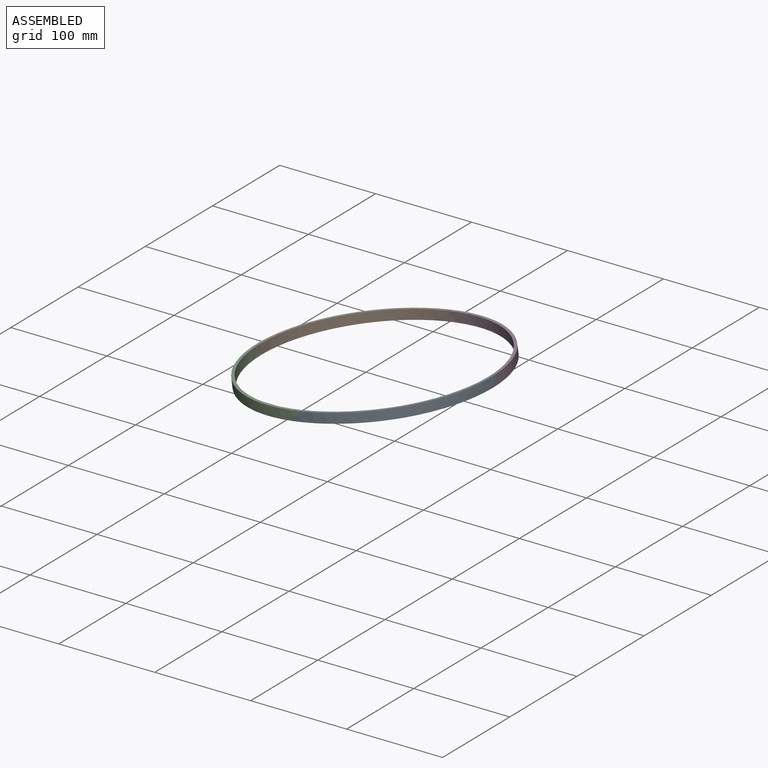
[diagram: assembled view]
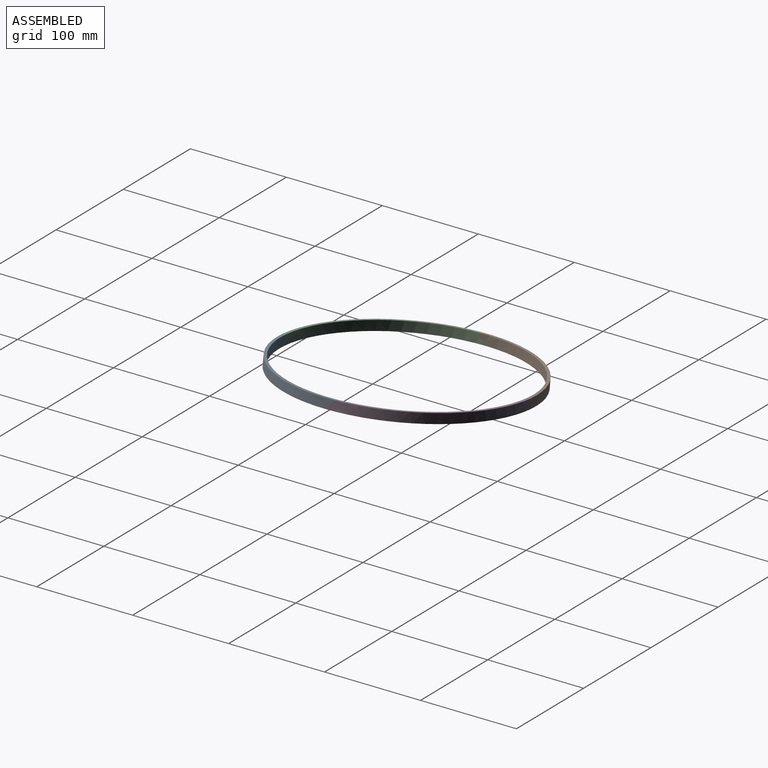
[diagram: assembled view, second angle]
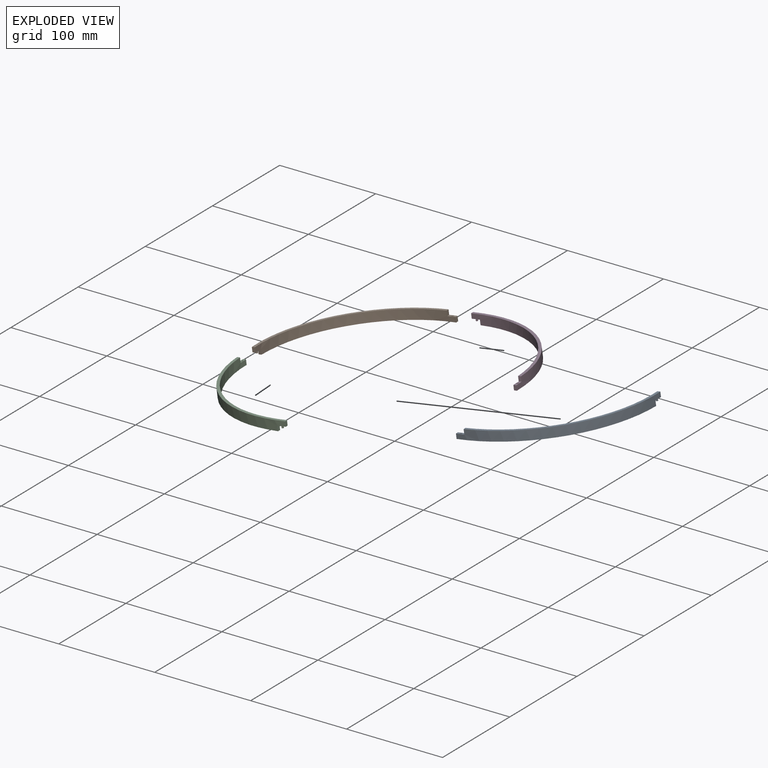
[diagram: exploded view]
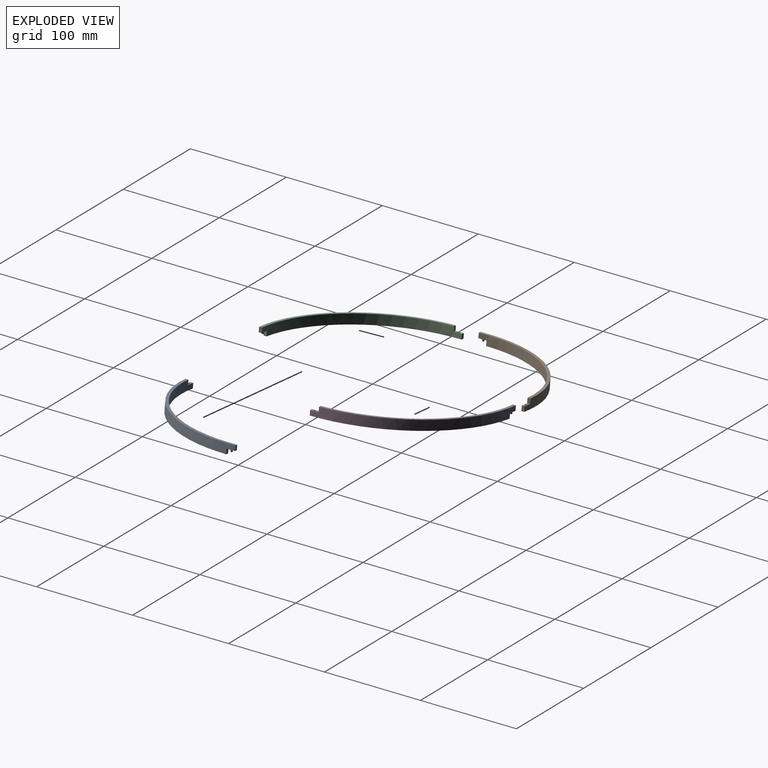
[diagram: exploded view, second angle]
ASSEMBLY  parts=4 mates=3
PART A: 14 faces, bbox 123x131.6x10 mm
  f0: plane 123x123mm, normal (0,0,-1), area 572.6mm2, adj f1,f2,f4,f7
  f1: plane 5x3mm, normal (1,0,0), area 15mm2, adj f0,f2,f4,f10
  f2: cylinder r=123mm len=131.58mm, axis (0,0,-1), area 1932.1mm2, adj f0,f1,f3,f5,f6,f7,f10,f11
  f3: plane 5x2.99mm, normal (0.07,-1,0), area 15mm2, adj f2,f4,f5,f6
  f4: cylinder r=120mm len=128.37mm, axis (0,0,-1), area 1885mm2, adj f0,f1,f3,f5,f6,f7,f10,f11
  f5: plane 131.28x114.63mm, normal (0,0,1), area 572.6mm2, adj f2,f3,f4,f11
  f6: plane 8.58x3.29mm, normal (0,0,-1), area 22.3mm2, adj f2,f3,f4,f7,f8
  f7: plane 5x3mm, normal (0,-1,0), area 15mm2, adj f0,f2,f4,f6
  f8: cylinder r=1mm len=2mm, axis (0,0,1), area 12.6mm2, adj f6,f9
  f9: plane 2x2mm, normal (0,0,-1), area 3.1mm2, adj f8
  f10: plane 8.58x3.29mm, normal (0,0,1), area 22mm2, adj f1,f2,f4,f11,f12
  f11: plane 5x2.99mm, normal (1,0.07,0), area 15mm2, adj f2,f4,f5,f10
  f12: cylinder r=1.05mm len=2.2mm, axis (0,0,1), area 14.5mm2, adj f10,f13
  f13: plane 2.1x2.1mm, normal (0,0,1), area 3.5mm2, adj f12
PART B: same geometry as A
PART C: same geometry as A
PART D: same geometry as A
PLACE A rot(axis=(0.07,0,-1),180deg) t=(-15.73,-5.99,-15.13)mm
PLACE B rot(axis=(0,-1,0),7.8deg) t=(-15.73,-5.99,-15.13)mm
PLACE C rot(axis=(-0.07,-0.07,1),90.3deg) t=(-15.73,-5.99,-15.13)mm
PLACE D rot(axis=(0.07,-0.07,-1),90.3deg) t=(-15.73,-5.99,-15.13)mm
MATE fastened C.f11 <-> B.f3  axis (-0.07,1,-0.01) through (-136.83,-14.47,-24.14)mm
MATE fastened A.f11 <-> C.f3  axis (-0.99,-0.07,-0.14) through (-8.35,-127.2,-6.55)mm
MATE fastened D.f3 <-> B.f11  axis (-0.99,-0.07,-0.14) through (-25.15,115.21,-8.85)mm
